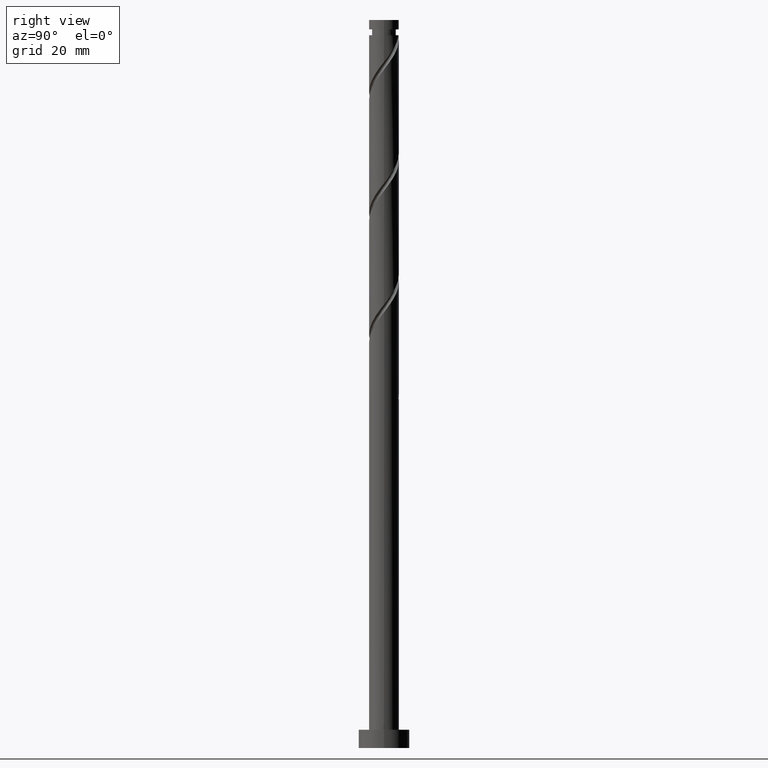
[diagram: clean part render]
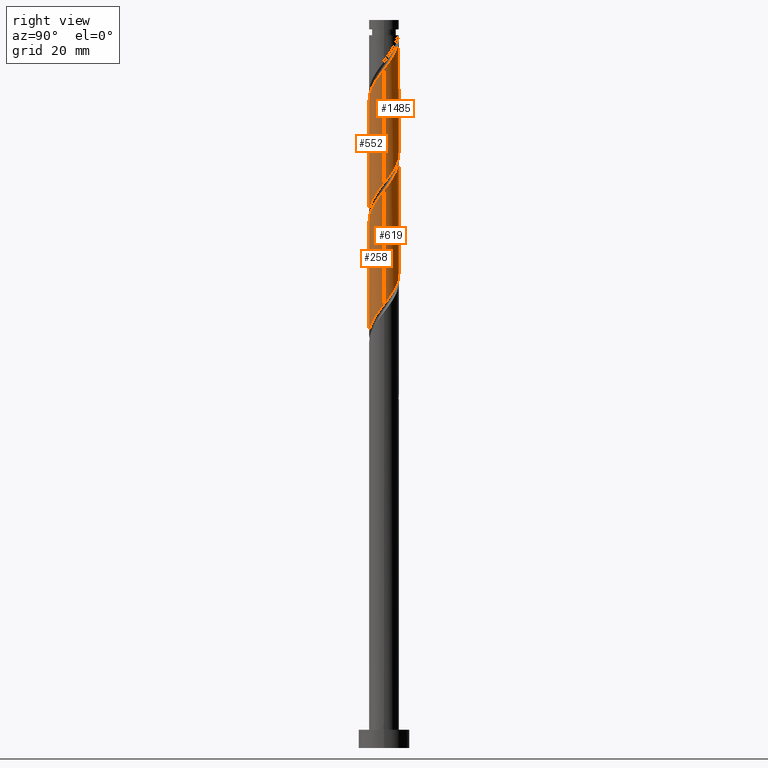
[diagram: same view with one multi-face feature highlighted, each face labeled with its STEP entity id]
A machine part, right view. The highlighted faces form ONE feature: a constant-radius fillet chain: 4 tangent blend faces with common blend radius 4.1 mm. The faces share edges in the B-rep.
Their STEP definitions:
[1] entity #258 (Cylinder):
#63 =( BOUNDED_CURVE ( )  B_SPLINE_CURVE ( 2, ( #532, #1608, #1718, #630, #398, #1441, #374, #638, #1201, #232, #101, #760, #1576, #1301, #504, #1165, #1711, #497, #1601, #391, #1466, #1030, #367, #928, #1726, #115, #1047 ),
 .UNSPECIFIED., .F., .T. ) 
 B_SPLINE_CURVE_WITH_KNOTS ( ( 3, 2, 2, 2, 2, 2, 2, 2, 2, 2, 2, 2, 2, 3 ),
 ( 0.3045317669814462946, 0.3125000000000000000, 0.3229166666666666297, 0.3333333333333333703, 0.3437500000000000000, 0.3541666666666666297, 0.3645833333333333703, 0.3750000000000000000, 0.3854166666666666297, 0.3958333333333333703, 0.4062500000000000000, 0.4166666666666666297, 0.4270833333333333703, 0.4295317669814461281 ),
 .UNSPECIFIED. ) 
 CURVE ( )  GEOMETRIC_REPRESENTATION_ITEM ( )  RATIONAL_B_SPLINE_CURVE ( ( 0.9062941362546472757, 0.9031415850403514689, 0.9090909090909271573, 0.9013135103398453030, 0.9090909090909271573, 0.9013135103398453030, 0.9090909090909271573, 0.9013135103398453030, 0.9090909090909271573, 0.9013135103398453030, 0.9090909090909271573, 0.9013135103398453030, 0.9090909090909271573, 0.9013135103398453030, 0.9090909090909271573, 0.9013135103398453030, 0.9090909090909271573, 0.9013135103398453030, 0.9090909090909271573, 0.9013135103398453030, 0.9090909090909271573, 0.9013135103398453030, 0.9090909090909271573, 0.9013135103398453030, 0.9090909090909271573, 0.9072628343904209913, 0.9062941362546474977 ) ) 
 REPRESENTATION_ITEM ( '' )  );
#68 = CARTESIAN_POINT ( 'NONE',  ( 3.071745223192158480, -2.715581205524181474, 118.0317985425582350 ) ) ;
#75 = VERTEX_POINT ( 'NONE', #1494 ) ;
#101 = CARTESIAN_POINT ( 'NONE',  ( -1.302418794475824981, -3.887634921619593342, 143.0317985425581924 ) ) ;
#113 = VERTEX_POINT ( 'NONE', #400 ) ;
#115 = CARTESIAN_POINT ( 'NONE',  ( 4.100000000000004086, -0.1260420017964737349, 152.9161793104311471 ) ) ;
#147 = ORIENTED_EDGE ( 'NONE', *, *, #340, .F. ) ;
#174 = CARTESIAN_POINT ( 'NONE',  ( 3.910586083446199179, -1.344869433733589137, 120.1151318758915352 ) ) ;
#186 = CARTESIAN_POINT ( 'NONE',  ( -2.715581205524180142, -3.071745223192158480, 109.6984652092249632 ) ) ;
#195 = CARTESIAN_POINT ( 'NONE',  ( -0.2869099631212743140, -4.125413916553799076, 113.1706874314471207 ) ) ;
#206 = CARTESIAN_POINT ( 'NONE',  ( -3.887634921619589345, -1.302418794475820540, 106.9206874314471492 ) ) ;
#220 = CARTESIAN_POINT ( 'NONE',  ( -4.100000000000004974, -2.990756888724007897E-15, 136.4126763317925679 ) ) ;
#232 = CARTESIAN_POINT ( 'NONE',  ( -1.814235641615024042, -3.716168234422086769, 142.3373540981137921 ) ) ;
#258 = ADVANCED_FACE ( 'NONE', ( #974 ), #1009, .T. ) ;
#308 = CARTESIAN_POINT ( 'NONE',  ( 0.7906019473366200367, -4.059101608817096363, 114.5595763203360065 ) ) ;
#326 = DIRECTION ( 'NONE',  ( -0.000000000000000000, -0.000000000000000000, -1.000000000000000000 ) ) ;
#335 = CARTESIAN_POINT ( 'NONE',  ( 3.669922177373502681, -1.828023854336185305, 119.4206874314471492 ) ) ;
#340 = EDGE_CURVE ( 'NONE', #75, #923, #1458, .T. ) ;
#345 = CARTESIAN_POINT ( 'NONE',  ( -4.100000000000000533, 4.919795081951022713E-15, 105.2064763088794024 ) ) ;
#347 = LINE ( 'NONE', #1572, #431 ) ;
#367 = CARTESIAN_POINT ( 'NONE',  ( 3.887634921619593342, -1.302418794475825203, 151.3651318758915352 ) ) ;
#374 = CARTESIAN_POINT ( 'NONE',  ( -3.071745223192163810, -2.715581205524180142, 140.2540207647804777 ) ) ;
#377 = AXIS2_PLACEMENT_3D ( 'NONE', #1534, #326, #1250 ) ;
#391 = CARTESIAN_POINT ( 'NONE',  ( 3.119984136109581918, -2.714232175083516552, 149.2817985425582208 ) ) ;
#398 = CARTESIAN_POINT ( 'NONE',  ( -3.669922177373510674, -1.828023854336183529, 138.8651318758915352 ) ) ;
#400 = CARTESIAN_POINT ( 'NONE',  ( 4.100000000000004974, 4.635673177522212615E-16, 153.0793429984592819 ) ) ;
#431 = VECTOR ( 'NONE', #1145, 1000.000000000000000 ) ;
#443 = CARTESIAN_POINT ( 'NONE',  ( 4.100000000000000533, 5.428223753034107144E-15, 121.8731429755461022 ) ) ;
#462 = CARTESIAN_POINT ( 'NONE',  ( -4.059101608817095475, -0.7906019473366212580, 106.2262429870026921 ) ) ;
#497 = CARTESIAN_POINT ( 'NONE',  ( 2.311178274938778809, -3.429258271300815064, 147.8929096536693919 ) ) ;
#504 = CARTESIAN_POINT ( 'NONE',  ( 0.8158896984274295328, -4.018000000000004235, 145.8095763203359638 ) ) ;
#506 = ORIENTED_EDGE ( 'NONE', *, *, #957, .F. ) ;
#532 = CARTESIAN_POINT ( 'NONE',  ( -4.100000000000004974, -2.990756888724007897E-15, 136.4126763317925679 ) ) ;
#569 = CARTESIAN_POINT ( 'NONE',  ( -4.092257762685448164, -0.2518459921076742214, 105.5317985425582492 ) ) ;
#576 = VECTOR ( 'NONE', #1563, 1000.000000000000000 ) ;
#580 = CARTESIAN_POINT ( 'NONE',  ( 2.264233908349262858, -3.418076185265833011, 116.6429096536693919 ) ) ;
#588 = CARTESIAN_POINT ( 'NONE',  ( 1.814235641615018713, -3.716168234422083216, 115.9484652092248780 ) ) ;
#597 = CARTESIAN_POINT ( 'NONE',  ( -3.119984136109579254, -2.714232175083509446, 109.0040207647804920 ) ) ;
#630 = CARTESIAN_POINT ( 'NONE',  ( -3.910586083446208061, -1.344869433733586916, 138.1706874314471349 ) ) ;
#638 = CARTESIAN_POINT ( 'NONE',  ( -2.714232175083516552, -3.119984136109581918, 140.9484652092249064 ) ) ;
#730 = CARTESIAN_POINT ( 'NONE',  ( -1.344869433733588027, -3.910586083446200956, 111.7817985425582350 ) ) ;
#737 = CARTESIAN_POINT ( 'NONE',  ( -4.100000000000000533, -0.1260420017964576922, 105.3696399969075514 ) ) ;
#760 = CARTESIAN_POINT ( 'NONE',  ( -0.7906019473366246997, -4.059101608817101692, 143.7262429870026779 ) ) ;
#923 = VERTEX_POINT ( 'NONE', #1057 ) ;
#928 = CARTESIAN_POINT ( 'NONE',  ( 4.059101608817101692, -0.7906019473366266981, 152.0595763203360207 ) ) ;
#957 = EDGE_CURVE ( 'NONE', #1226, #113, #63, .T. ) ;
#974 = FACE_OUTER_BOUND ( 'NONE', #1182, .T. ) ;
#991 = CARTESIAN_POINT ( 'NONE',  ( 2.714232175083508558, -3.119984136109578809, 117.3373540981137779 ) ) ;
#1009 = CYLINDRICAL_SURFACE ( 'NONE', #377, 4.099999999999999645 ) ;
#1020 = CARTESIAN_POINT ( 'NONE',  ( 4.099999999999999645, 5.021051876504147385E-16, 200.0000000000000000 ) ) ;
#1030 = CARTESIAN_POINT ( 'NONE',  ( 3.716168234422086769, -1.814235641615024042, 150.6706874314471634 ) ) ;
#1047 = CARTESIAN_POINT ( 'NONE',  ( 4.100000000000004974, 4.635673177522212615E-16, 153.0793429984592819 ) ) ;
#1057 = CARTESIAN_POINT ( 'NONE',  ( -4.100000000000000533, 4.919795081951022713E-15, 105.2064763088794024 ) ) ;
#1115 = CARTESIAN_POINT ( 'NONE',  ( 0.2518459921076728891, -4.092257762685448164, 113.8651318758916062 ) ) ;
#1131 = CARTESIAN_POINT ( 'NONE',  ( 1.302418794475820096, -3.887634921619589345, 115.2540207647804920 ) ) ;
#1145 = DIRECTION ( 'NONE',  ( -0.000000000000000000, -0.000000000000000000, -1.000000000000000000 ) ) ;
#1165 = CARTESIAN_POINT ( 'NONE',  ( 1.344869433733586916, -3.910586083446208061, 146.5040207647804777 ) ) ;
#1182 = EDGE_LOOP ( 'NONE', ( #1194, #506, #1729, #147 ) ) ;
#1194 = ORIENTED_EDGE ( 'NONE', *, *, #1375, .F. ) ;
#1201 = CARTESIAN_POINT ( 'NONE',  ( -2.264233908349268631, -3.418076185265834788, 141.6429096536692782 ) ) ;
#1226 = VERTEX_POINT ( 'NONE', #220 ) ;
#1243 = EDGE_CURVE ( 'NONE', #1226, #923, #347, .T. ) ;
#1250 = DIRECTION ( 'NONE',  ( -1.000000000000000000, 0.000000000000000000, 0.000000000000000000 ) ) ;
#1277 = CARTESIAN_POINT ( 'NONE',  ( -2.311178274938777477, -3.429258271300808403, 110.3929096536693635 ) ) ;
#1290 = LINE ( 'NONE', #1020, #576 ) ;
#1301 = CARTESIAN_POINT ( 'NONE',  ( 0.2869099631212713164, -4.125413916553803517, 145.1151318758915920 ) ) ;
#1375 = EDGE_CURVE ( 'NONE', #113, #75, #1290, .T. ) ;
#1396 = CARTESIAN_POINT ( 'NONE',  ( 3.429258271300806626, -2.311178274938779698, 118.7262429870026494 ) ) ;
#1405 = CARTESIAN_POINT ( 'NONE',  ( 4.018000000000000682, -0.8158896984274305320, 120.8095763203360633 ) ) ;
#1441 = CARTESIAN_POINT ( 'NONE',  ( -3.429258271300815064, -2.311178274938779698, 139.5595763203359922 ) ) ;
#1458 =( BOUNDED_CURVE ( )  B_SPLINE_CURVE ( 2, ( #443, #1544, #1405, #174, #335, #1396, #68, #991, #580, #588, #1131, #308, #1115, #195, #1667, #730, #1553, #1277, #186, #597, #1676, #1526, #206, #462, #569, #737, #345 ),
 .UNSPECIFIED., .F., .T. ) 
 B_SPLINE_CURVE_WITH_KNOTS ( ( 3, 2, 2, 2, 2, 2, 2, 2, 2, 2, 2, 2, 2, 3 ),
 ( 0.8045317669814462391, 0.8125000000000000000, 0.8229166666666666297, 0.8333333333333333703, 0.8437500000000000000, 0.8541666666666666297, 0.8645833333333333703, 0.8750000000000000000, 0.8854166666666666297, 0.8958333333333333703, 0.9062500000000000000, 0.9166666666666666297, 0.9270833333333333703, 0.9295317669814463502 ),
 .UNSPECIFIED. ) 
 CURVE ( )  GEOMETRIC_REPRESENTATION_ITEM ( )  RATIONAL_B_SPLINE_CURVE ( ( 0.9062941362546417245, 0.9031415850403461398, 0.9090909090909213841, 0.9013135103398399739, 0.9090909090909213841, 0.9013135103398399739, 0.9090909090909213841, 0.9013135103398399739, 0.9090909090909213841, 0.9013135103398399739, 0.9090909090909213841, 0.9013135103398399739, 0.9090909090909213841, 0.9013135103398399739, 0.9090909090909213841, 0.9013135103398399739, 0.9090909090909213841, 0.9013135103398399739, 0.9090909090909213841, 0.9013135103398399739, 0.9090909090909213841, 0.9013135103398399739, 0.9090909090909213841, 0.9013135103398399739, 0.9090909090909213841, 0.9072628343904152182, 0.9062941362546417245 ) ) 
 REPRESENTATION_ITEM ( '' )  );
#1466 = CARTESIAN_POINT ( 'NONE',  ( 3.418076185265832567, -2.264233908349269964, 149.9762429870026494 ) ) ;
#1494 = CARTESIAN_POINT ( 'NONE',  ( 4.100000000000000533, 5.428223753034107144E-15, 121.8731429755461022 ) ) ;
#1526 = CARTESIAN_POINT ( 'NONE',  ( -3.716168234422083216, -1.814235641615018713, 107.6151318758915778 ) ) ;
#1534 = CARTESIAN_POINT ( 'NONE',  ( 0.000000000000000000, 0.000000000000000000, 200.0000000000000000 ) ) ;
#1544 = CARTESIAN_POINT ( 'NONE',  ( 4.100000000000000533, -0.4120655042562753057, 121.3397166063568164 ) ) ;
#1553 = CARTESIAN_POINT ( 'NONE',  ( -1.828023854336183307, -3.669922177373504901, 111.0873540981138063 ) ) ;
#1563 = DIRECTION ( 'NONE',  ( -0.000000000000000000, -0.000000000000000000, -1.000000000000000000 ) ) ;
#1572 = CARTESIAN_POINT ( 'NONE',  ( -4.099999999999999645, 0.000000000000000000, 200.0000000000000000 ) ) ;
#1576 = CARTESIAN_POINT ( 'NONE',  ( -0.2518459921076766084, -4.092257762685451716, 144.4206874314471065 ) ) ;
#1601 = CARTESIAN_POINT ( 'NONE',  ( 2.715581205524179698, -3.071745223192164698, 148.5873540981137353 ) ) ;
#1608 = CARTESIAN_POINT ( 'NONE',  ( -4.100000000000005862, -0.4120655042562764714, 136.9461027009818679 ) ) ;
#1667 = CARTESIAN_POINT ( 'NONE',  ( -0.8158896984274304209, -4.018000000000000682, 112.4762429870027063 ) ) ;
#1676 = CARTESIAN_POINT ( 'NONE',  ( -3.418076185265831679, -2.264233908349265079, 108.3095763203360207 ) ) ;
#1711 = CARTESIAN_POINT ( 'NONE',  ( 1.828023854336181975, -3.669922177373511119, 147.1984652092249064 ) ) ;
#1718 = CARTESIAN_POINT ( 'NONE',  ( -4.018000000000004235, -0.8158896984274297548, 137.4762429870026779 ) ) ;
#1726 = CARTESIAN_POINT ( 'NONE',  ( 4.092257762685450828, -0.2518459921076786068, 152.7540207647804777 ) ) ;
#1729 = ORIENTED_EDGE ( 'NONE', *, *, #1243, .T. ) ;
[2] entity #619 (Cylinder):
#5 = CARTESIAN_POINT ( 'NONE',  ( -4.018000000000000682, 0.8158896984274299768, 137.4762429870027063 ) ) ;
#11 = CARTESIAN_POINT ( 'NONE',  ( -4.100000000000004086, 0.1260420017964669070, 169.5828459770977759 ) ) ;
#14 = CARTESIAN_POINT ( 'NONE',  ( 1.828023854336185750, 3.669922177373502681, 127.7540207647805062 ) ) ;
#19 = CARTESIAN_POINT ( 'NONE',  ( 2.264233908349269075, 3.418076185265834788, 158.3095763203359922 ) ) ;
#23 = CARTESIAN_POINT ( 'NONE',  ( -4.100000000000002309, 0.4120655042562692549, 138.0063832730234878 ) ) ;
#25 = EDGE_CURVE ( 'NONE', #553, #75, #402, .T. ) ;
#75 = VERTEX_POINT ( 'NONE', #1494 ) ;
#86 = FACE_OUTER_BOUND ( 'NONE', #485, .T. ) ;
#113 = VERTEX_POINT ( 'NONE', #400 ) ;
#117 = CARTESIAN_POINT ( 'NONE',  ( -4.092257762685451716, 0.2518459921076763863, 169.4206874314471065 ) ) ;
#119 = CARTESIAN_POINT ( 'NONE',  ( 1.344869433733590247, 3.910586083446199179, 128.4484652092249348 ) ) ;
#130 = CARTESIAN_POINT ( 'NONE',  ( -3.669922177373504901, 1.828023854336183307, 136.0873540981137921 ) ) ;
#139 = CARTESIAN_POINT ( 'NONE',  ( 2.715581205524181474, 3.071745223192158036, 126.3651318758916062 ) ) ;
#148 = CARTESIAN_POINT ( 'NONE',  ( 2.311178274938780142, 3.429258271300806626, 127.0595763203359922 ) ) ;
#229 = DIRECTION ( 'NONE',  ( -0.000000000000000000, -0.000000000000000000, -1.000000000000000000 ) ) ;
#287 = CARTESIAN_POINT ( 'NONE',  ( -1.828023854336183751, 3.669922177373510674, 163.8651318758915352 ) ) ;
#289 = CARTESIAN_POINT ( 'NONE',  ( 4.100000000000000533, 5.428223753034107144E-15, 121.8731429755461022 ) ) ;
#399 = CARTESIAN_POINT ( 'NONE',  ( 3.910586083446208061, 1.344869433733586472, 154.8373540981138206 ) ) ;
#400 = CARTESIAN_POINT ( 'NONE',  ( 4.100000000000004974, 4.635673177522212615E-16, 153.0793429984592819 ) ) ;
#402 =( BOUNDED_CURVE ( )  B_SPLINE_CURVE ( 2, ( #1351, #23, #5, #933, #130, #685, #1195, #1501, #1234, #1474, #1089, #1748, #949, #1081, #1096, #119, #14, #148, #139, #424, #1225, #409, #658, #819, #1630, #668, #289 ),
 .UNSPECIFIED., .F., .T. ) 
 B_SPLINE_CURVE_WITH_KNOTS ( ( 3, 2, 2, 2, 2, 2, 2, 2, 2, 2, 2, 2, 2, 3 ),
 ( 0.6795317669814461281, 0.6875000000000000000, 0.6979166666666666297, 0.7083333333333333703, 0.7187500000000000000, 0.7291666666666666297, 0.7395833333333333703, 0.7500000000000000000, 0.7604166666666666297, 0.7708333333333333703, 0.7812500000000000000, 0.7916666666666666297, 0.8020833333333333703, 0.8045317669814462391 ),
 .UNSPECIFIED. ) 
 CURVE ( )  GEOMETRIC_REPRESENTATION_ITEM ( )  RATIONAL_B_SPLINE_CURVE ( ( 0.9062941362546417245, 0.9031415850403459178, 0.9090909090909213841, 0.9013135103398399739, 0.9090909090909213841, 0.9013135103398399739, 0.9090909090909213841, 0.9013135103398399739, 0.9090909090909213841, 0.9013135103398399739, 0.9090909090909213841, 0.9013135103398399739, 0.9090909090909213841, 0.9013135103398399739, 0.9090909090909213841, 0.9013135103398399739, 0.9090909090909213841, 0.9013135103398399739, 0.9090909090909213841, 0.9013135103398399739, 0.9090909090909213841, 0.9013135103398399739, 0.9090909090909213841, 0.9013135103398399739, 0.9090909090909213841, 0.9072628343904152182, 0.9062941362546417245 ) ) 
 REPRESENTATION_ITEM ( '' )  );
#409 = CARTESIAN_POINT ( 'NONE',  ( 3.716168234422084105, 1.814235641615016714, 124.2817985425582208 ) ) ;
#424 = CARTESIAN_POINT ( 'NONE',  ( 3.119984136109579698, 2.714232175083508558, 125.6706874314471349 ) ) ;
#480 =( BOUNDED_CURVE ( )  B_SPLINE_CURVE ( 2, ( #1231, #807, #524, #399, #549, #1602, #788, #1483, #19, #1327, #1086, #683, #1358, #1746, #947, #1193, #287, #939, #557, #1499, #1212, #1492, #533, #953, #117, #11, #930 ),
 .UNSPECIFIED., .F., .T. ) 
 B_SPLINE_CURVE_WITH_KNOTS ( ( 3, 2, 2, 2, 2, 2, 2, 2, 2, 2, 2, 2, 2, 3 ),
 ( 0.4295317669814461281, 0.4375000000000000000, 0.4479166666666666297, 0.4583333333333333703, 0.4687500000000000000, 0.4791666666666666297, 0.4895833333333333703, 0.5000000000000000000, 0.5104166666666667407, 0.5208333333333332593, 0.5312500000000000000, 0.5416666666666667407, 0.5520833333333332593, 0.5545317669814461281 ),
 .UNSPECIFIED. ) 
 CURVE ( )  GEOMETRIC_REPRESENTATION_ITEM ( )  RATIONAL_B_SPLINE_CURVE ( ( 0.9062941362546474977, 0.9031415850403514689, 0.9090909090909271573, 0.9013135103398453030, 0.9090909090909271573, 0.9013135103398453030, 0.9090909090909271573, 0.9013135103398453030, 0.9090909090909271573, 0.9013135103398453030, 0.9090909090909271573, 0.9013135103398453030, 0.9090909090909271573, 0.9013135103398453030, 0.9090909090909271573, 0.9013135103398453030, 0.9090909090909271573, 0.9013135103398453030, 0.9090909090909271573, 0.9013135103398453030, 0.9090909090909271573, 0.9013135103398453030, 0.9090909090909271573, 0.9013135103398453030, 0.9090909090909271573, 0.9072628343904209913, 0.9062941362546474977 ) ) 
 REPRESENTATION_ITEM ( '' )  );
#484 = CARTESIAN_POINT ( 'NONE',  ( -4.099999999999999645, 0.000000000000000000, 200.0000000000000000 ) ) ;
#485 = EDGE_LOOP ( 'NONE', ( #1604, #1609, #1241, #1104 ) ) ;
#523 = CARTESIAN_POINT ( 'NONE',  ( -4.100000000000004974, -1.615008719910963854E-15, 169.7460096651259391 ) ) ;
#524 = CARTESIAN_POINT ( 'NONE',  ( 4.018000000000004235, 0.8158896984274293107, 154.1429096536692782 ) ) ;
#533 = CARTESIAN_POINT ( 'NONE',  ( -3.887634921619593342, 1.302418794475823649, 168.0317985425582208 ) ) ;
#549 = CARTESIAN_POINT ( 'NONE',  ( 3.669922177373511119, 1.828023854336181975, 155.5317985425582492 ) ) ;
#553 = VERTEX_POINT ( 'NONE', #897 ) ;
#557 = CARTESIAN_POINT ( 'NONE',  ( -2.715581205524180586, 3.071745223192163810, 165.2540207647804209 ) ) ;
#576 = VECTOR ( 'NONE', #1563, 1000.000000000000000 ) ;
#619 = ADVANCED_FACE ( 'NONE', ( #86 ), #624, .T. ) ;
#624 = CYLINDRICAL_SURFACE ( 'NONE', #965, 4.099999999999999645 ) ;
#658 = CARTESIAN_POINT ( 'NONE',  ( 3.887634921619590234, 1.302418794475818098, 123.5873540981138348 ) ) ;
#668 = CARTESIAN_POINT ( 'NONE',  ( 4.099999999999999645, 0.1260420017964621331, 122.0363066635742371 ) ) ;
#683 = CARTESIAN_POINT ( 'NONE',  ( 0.7906019473366268091, 4.059101608817101692, 160.3929096536693919 ) ) ;
#685 = CARTESIAN_POINT ( 'NONE',  ( -3.429258271300808403, 2.311178274938777477, 135.3929096536693351 ) ) ;
#700 = EDGE_CURVE ( 'NONE', #113, #938, #480, .T. ) ;
#788 = CARTESIAN_POINT ( 'NONE',  ( 3.071745223192165586, 2.715581205524178365, 156.9206874314471065 ) ) ;
#807 = CARTESIAN_POINT ( 'NONE',  ( 4.100000000000006750, 0.4120655042562653692, 153.6127693676484967 ) ) ;
#819 = CARTESIAN_POINT ( 'NONE',  ( 4.059101608817096363, 0.7906019473366198147, 122.8929096536693351 ) ) ;
#897 = CARTESIAN_POINT ( 'NONE',  ( -4.100000000000000533, 4.919795081951022713E-15, 138.5398096422127310 ) ) ;
#930 = CARTESIAN_POINT ( 'NONE',  ( -4.100000000000004974, -1.615008719910963854E-15, 169.7460096651259391 ) ) ;
#933 = CARTESIAN_POINT ( 'NONE',  ( -3.910586083446200956, 1.344869433733586694, 136.7817985425581924 ) ) ;
#938 = VERTEX_POINT ( 'NONE', #523 ) ;
#939 = CARTESIAN_POINT ( 'NONE',  ( -2.311178274938780586, 3.429258271300814620, 164.5595763203360491 ) ) ;
#947 = CARTESIAN_POINT ( 'NONE',  ( -0.8158896984274289776, 4.018000000000004235, 162.4762429870026779 ) ) ;
#949 = CARTESIAN_POINT ( 'NONE',  ( -0.2518459921076746100, 4.092257762685448164, 130.5317985425582776 ) ) ;
#953 = CARTESIAN_POINT ( 'NONE',  ( -4.059101608817101692, 0.7906019473366244776, 168.7262429870026779 ) ) ;
#965 = AXIS2_PLACEMENT_3D ( 'NONE', #1585, #1173, #1720 ) ;
#1020 = CARTESIAN_POINT ( 'NONE',  ( 4.099999999999999645, 5.021051876504147385E-16, 200.0000000000000000 ) ) ;
#1081 = CARTESIAN_POINT ( 'NONE',  ( 0.2869099631212730928, 4.125413916553798188, 129.8373540981138206 ) ) ;
#1086 = CARTESIAN_POINT ( 'NONE',  ( 1.302418794475825425, 3.887634921619592898, 159.6984652092248780 ) ) ;
#1089 = CARTESIAN_POINT ( 'NONE',  ( -1.302418794475821207, 3.887634921619589345, 131.9206874314471634 ) ) ;
#1096 = CARTESIAN_POINT ( 'NONE',  ( 0.8158896984274306430, 4.018000000000000682, 129.1429096536693635 ) ) ;
#1104 = ORIENTED_EDGE ( 'NONE', *, *, #1297, .F. ) ;
#1173 = DIRECTION ( 'NONE',  ( -0.000000000000000000, -0.000000000000000000, -1.000000000000000000 ) ) ;
#1177 = LINE ( 'NONE', #484, #1594 ) ;
#1193 = CARTESIAN_POINT ( 'NONE',  ( -1.344869433733587583, 3.910586083446207173, 163.1706874314471634 ) ) ;
#1195 = CARTESIAN_POINT ( 'NONE',  ( -3.071745223192159369, 2.715581205524179698, 134.6984652092249064 ) ) ;
#1212 = CARTESIAN_POINT ( 'NONE',  ( -3.418076185265835232, 2.264233908349268631, 166.6429096536693066 ) ) ;
#1225 = CARTESIAN_POINT ( 'NONE',  ( 3.418076185265832123, 2.264233908349264190, 124.9762429870027205 ) ) ;
#1231 = CARTESIAN_POINT ( 'NONE',  ( 4.100000000000004974, 4.635673177522212615E-16, 153.0793429984592819 ) ) ;
#1234 = CARTESIAN_POINT ( 'NONE',  ( -2.264233908349265523, 3.418076185265831679, 133.3095763203360207 ) ) ;
#1241 = ORIENTED_EDGE ( 'NONE', *, *, #25, .F. ) ;
#1290 = LINE ( 'NONE', #1020, #576 ) ;
#1297 = EDGE_CURVE ( 'NONE', #938, #553, #1177, .T. ) ;
#1327 = CARTESIAN_POINT ( 'NONE',  ( 1.814235641615024708, 3.716168234422086769, 159.0040207647804493 ) ) ;
#1351 = CARTESIAN_POINT ( 'NONE',  ( -4.100000000000000533, 4.919795081951022713E-15, 138.5398096422127310 ) ) ;
#1358 = CARTESIAN_POINT ( 'NONE',  ( 0.2518459921076788288, 4.092257762685450828, 161.0873540981137353 ) ) ;
#1375 = EDGE_CURVE ( 'NONE', #113, #75, #1290, .T. ) ;
#1474 = CARTESIAN_POINT ( 'NONE',  ( -1.814235641615019823, 3.716168234422081884, 132.6151318758915920 ) ) ;
#1483 = CARTESIAN_POINT ( 'NONE',  ( 2.714232175083517440, 3.119984136109580142, 157.6151318758916204 ) ) ;
#1492 = CARTESIAN_POINT ( 'NONE',  ( -3.716168234422086769, 1.814235641615022931, 167.3373540981138206 ) ) ;
#1494 = CARTESIAN_POINT ( 'NONE',  ( 4.100000000000000533, 5.428223753034107144E-15, 121.8731429755461022 ) ) ;
#1499 = CARTESIAN_POINT ( 'NONE',  ( -3.119984136109582806, 2.714232175083515219, 165.9484652092249064 ) ) ;
#1501 = CARTESIAN_POINT ( 'NONE',  ( -2.714232175083509890, 3.119984136109578809, 134.0040207647804493 ) ) ;
#1563 = DIRECTION ( 'NONE',  ( -0.000000000000000000, -0.000000000000000000, -1.000000000000000000 ) ) ;
#1585 = CARTESIAN_POINT ( 'NONE',  ( 0.000000000000000000, 0.000000000000000000, 200.0000000000000000 ) ) ;
#1594 = VECTOR ( 'NONE', #229, 1000.000000000000000 ) ;
#1602 = CARTESIAN_POINT ( 'NONE',  ( 3.429258271300815064, 2.311178274938778365, 156.2262429870027063 ) ) ;
#1604 = ORIENTED_EDGE ( 'NONE', *, *, #700, .F. ) ;
#1609 = ORIENTED_EDGE ( 'NONE', *, *, #1375, .T. ) ;
#1630 = CARTESIAN_POINT ( 'NONE',  ( 4.092257762685448164, 0.2518459921076726671, 122.1984652092249348 ) ) ;
#1720 = DIRECTION ( 'NONE',  ( -1.000000000000000000, 0.000000000000000000, 0.000000000000000000 ) ) ;
#1746 = CARTESIAN_POINT ( 'NONE',  ( -0.2869099631212688184, 4.125413916553803517, 161.7817985425582492 ) ) ;
#1748 = CARTESIAN_POINT ( 'NONE',  ( -0.7906019473366224792, 4.059101608817095475, 131.2262429870026779 ) ) ;
[3] entity #552 (Cylinder):
#7 = CARTESIAN_POINT ( 'NONE',  ( -3.119984136109579254, -2.714232175083509446, 142.3373540981137637 ) ) ;
#31 = CARTESIAN_POINT ( 'NONE',  ( -2.264233908349268631, -3.418076185265834788, 174.9762429870026779 ) ) ;
#50 = CARTESIAN_POINT ( 'NONE',  ( 1.344869433733586916, -3.910586083446208061, 179.8373540981137921 ) ) ;
#116 = VERTEX_POINT ( 'NONE', #267 ) ;
#133 = CARTESIAN_POINT ( 'NONE',  ( 3.910586083446199179, -1.344869433733589137, 153.4484652092248780 ) ) ;
#141 = CARTESIAN_POINT ( 'NONE',  ( 3.669922177373502681, -1.828023854336185305, 152.7540207647804493 ) ) ;
#150 = CARTESIAN_POINT ( 'NONE',  ( -4.092257762685448164, -0.2518459921076742214, 138.8651318758916204 ) ) ;
#166 = CARTESIAN_POINT ( 'NONE',  ( -4.018000000000004235, -0.8158896984274297548, 170.8095763203359922 ) ) ;
#175 = VERTEX_POINT ( 'NONE', #1508 ) ;
#191 = ORIENTED_EDGE ( 'NONE', *, *, #1297, .T. ) ;
#225 = CYLINDRICAL_SURFACE ( 'NONE', #1049, 4.099999999999999645 ) ;
#229 = DIRECTION ( 'NONE',  ( -0.000000000000000000, -0.000000000000000000, -1.000000000000000000 ) ) ;
#253 = CARTESIAN_POINT ( 'NONE',  ( 3.429258271300806626, -2.311178274938779698, 152.0595763203360207 ) ) ;
#267 = CARTESIAN_POINT ( 'NONE',  ( 4.100000000000004974, -8.822732821735821147E-16, 186.4126763317926248 ) ) ;
#283 = CARTESIAN_POINT ( 'NONE',  ( 2.264233908349262858, -3.418076185265833011, 149.9762429870027063 ) ) ;
#362 = CARTESIAN_POINT ( 'NONE',  ( 0.000000000000000000, 0.000000000000000000, 200.0000000000000000 ) ) ;
#378 = CARTESIAN_POINT ( 'NONE',  ( -1.344869433733588027, -3.910586083446200956, 145.1151318758915352 ) ) ;
#387 = CARTESIAN_POINT ( 'NONE',  ( -4.100000000000000533, 4.919795081951022713E-15, 138.5398096422127310 ) ) ;
#389 = EDGE_CURVE ( 'NONE', #938, #116, #1019, .T. ) ;
#395 = CARTESIAN_POINT ( 'NONE',  ( 4.100000000000000533, 5.428223753034107144E-15, 155.2064763088794450 ) ) ;
#403 = CARTESIAN_POINT ( 'NONE',  ( -4.059101608817095475, -0.7906019473366212580, 139.5595763203359922 ) ) ;
#435 = CARTESIAN_POINT ( 'NONE',  ( -0.7906019473366246997, -4.059101608817101692, 177.0595763203360491 ) ) ;
#461 = VECTOR ( 'NONE', #975, 1000.000000000000000 ) ;
#481 = CARTESIAN_POINT ( 'NONE',  ( 4.059101608817101692, -0.7906019473366266981, 185.3929096536694203 ) ) ;
#484 = CARTESIAN_POINT ( 'NONE',  ( -4.099999999999999645, 0.000000000000000000, 200.0000000000000000 ) ) ;
#514 = CARTESIAN_POINT ( 'NONE',  ( 2.311178274938778809, -3.429258271300815064, 181.2262429870027063 ) ) ;
#523 = CARTESIAN_POINT ( 'NONE',  ( -4.100000000000004974, -1.615008719910963854E-15, 169.7460096651259391 ) ) ;
#552 = ADVANCED_FACE ( 'NONE', ( #1434 ), #225, .T. ) ;
#553 = VERTEX_POINT ( 'NONE', #897 ) ;
#570 = LINE ( 'NONE', #1105, #461 ) ;
#631 = DIRECTION ( 'NONE',  ( -1.000000000000000000, 0.000000000000000000, 0.000000000000000000 ) ) ;
#680 = CARTESIAN_POINT ( 'NONE',  ( 1.814235641615018713, -3.716168234422083216, 149.2817985425582208 ) ) ;
#701 = CARTESIAN_POINT ( 'NONE',  ( -3.910586083446208061, -1.344869433733586916, 171.5040207647805062 ) ) ;
#711 = CARTESIAN_POINT ( 'NONE',  ( 0.2869099631212713164, -4.125413916553803517, 178.4484652092249064 ) ) ;
#719 = CARTESIAN_POINT ( 'NONE',  ( -3.669922177373510674, -1.828023854336183529, 172.1984652092248780 ) ) ;
#761 = CARTESIAN_POINT ( 'NONE',  ( 3.887634921619593342, -1.302418794475825203, 184.6984652092248780 ) ) ;
#769 = DIRECTION ( 'NONE',  ( -0.000000000000000000, -0.000000000000000000, -1.000000000000000000 ) ) ;
#779 = CARTESIAN_POINT ( 'NONE',  ( 3.716168234422086769, -1.814235641615024042, 184.0040207647804777 ) ) ;
#785 = EDGE_LOOP ( 'NONE', ( #1612, #1073, #191, #1484 ) ) ;
#803 = CARTESIAN_POINT ( 'NONE',  ( 1.302418794475820096, -3.887634921619589345, 148.5873540981138206 ) ) ;
#813 = CARTESIAN_POINT ( 'NONE',  ( -3.418076185265831679, -2.264233908349265079, 141.6429096536693351 ) ) ;
#842 = CARTESIAN_POINT ( 'NONE',  ( -3.429258271300815064, -2.311178274938779698, 172.8929096536693919 ) ) ;
#888 = CARTESIAN_POINT ( 'NONE',  ( 4.092257762685450828, -0.2518459921076786068, 186.0873540981137921 ) ) ;
#897 = CARTESIAN_POINT ( 'NONE',  ( -4.100000000000000533, 4.919795081951022713E-15, 138.5398096422127310 ) ) ;
#917 = CARTESIAN_POINT ( 'NONE',  ( -2.715581205524180142, -3.071745223192158480, 143.0317985425582776 ) ) ;
#925 = CARTESIAN_POINT ( 'NONE',  ( 3.071745223192158480, -2.715581205524181474, 151.3651318758916204 ) ) ;
#938 = VERTEX_POINT ( 'NONE', #523 ) ;
#975 = DIRECTION ( 'NONE',  ( -0.000000000000000000, -0.000000000000000000, -1.000000000000000000 ) ) ;
#1019 =( BOUNDED_CURVE ( )  B_SPLINE_CURVE ( 2, ( #1141, #1377, #166, #701, #719, #842, #1261, #1240, #31, #1103, #1647, #435, #1387, #711, #1657, #50, #1123, #514, #1311, #1696, #1561, #779, #761, #481, #888, #1450, #1318 ),
 .UNSPECIFIED., .F., .T. ) 
 B_SPLINE_CURVE_WITH_KNOTS ( ( 3, 2, 2, 2, 2, 2, 2, 2, 2, 2, 2, 2, 2, 3 ),
 ( 0.5545317669814461281, 0.5625000000000000000, 0.5729166666666667407, 0.5833333333333332593, 0.5937500000000000000, 0.6041666666666667407, 0.6145833333333332593, 0.6250000000000000000, 0.6354166666666667407, 0.6458333333333332593, 0.6562500000000000000, 0.6666666666666667407, 0.6770833333333332593, 0.6795317669814463502 ),
 .UNSPECIFIED. ) 
 CURVE ( )  GEOMETRIC_REPRESENTATION_ITEM ( )  RATIONAL_B_SPLINE_CURVE ( ( 0.9062941362546474977, 0.9031415850403514689, 0.9090909090909271573, 0.9013135103398453030, 0.9090909090909271573, 0.9013135103398453030, 0.9090909090909271573, 0.9013135103398453030, 0.9090909090909271573, 0.9013135103398453030, 0.9090909090909271573, 0.9013135103398453030, 0.9090909090909271573, 0.9013135103398453030, 0.9090909090909271573, 0.9013135103398453030, 0.9090909090909271573, 0.9013135103398453030, 0.9090909090909271573, 0.9013135103398453030, 0.9090909090909271573, 0.9013135103398453030, 0.9090909090909271573, 0.9013135103398453030, 0.9090909090909271573, 0.9072628343904207693, 0.9062941362546472757 ) ) 
 REPRESENTATION_ITEM ( '' )  );
#1043 = CARTESIAN_POINT ( 'NONE',  ( 4.018000000000000682, -0.8158896984274305320, 154.1429096536693351 ) ) ;
#1049 = AXIS2_PLACEMENT_3D ( 'NONE', #362, #769, #631 ) ;
#1053 = CARTESIAN_POINT ( 'NONE',  ( -0.8158896984274304209, -4.018000000000000682, 145.8095763203360207 ) ) ;
#1073 = ORIENTED_EDGE ( 'NONE', *, *, #389, .F. ) ;
#1075 = CARTESIAN_POINT ( 'NONE',  ( 0.2518459921076728891, -4.092257762685448164, 147.1984652092249064 ) ) ;
#1103 = CARTESIAN_POINT ( 'NONE',  ( -1.814235641615024042, -3.716168234422086769, 175.6706874314471065 ) ) ;
#1105 = CARTESIAN_POINT ( 'NONE',  ( 4.099999999999999645, 5.021051876504147385E-16, 200.0000000000000000 ) ) ;
#1123 = CARTESIAN_POINT ( 'NONE',  ( 1.828023854336181975, -3.669922177373511119, 180.5317985425582492 ) ) ;
#1141 = CARTESIAN_POINT ( 'NONE',  ( -4.100000000000004974, -1.615008719910963854E-15, 169.7460096651259391 ) ) ;
#1177 = LINE ( 'NONE', #484, #1594 ) ;
#1185 = CARTESIAN_POINT ( 'NONE',  ( 0.7906019473366200367, -4.059101608817096363, 147.8929096536693066 ) ) ;
#1217 = CARTESIAN_POINT ( 'NONE',  ( -0.2869099631212743140, -4.125413916553799076, 146.5040207647804493 ) ) ;
#1240 = CARTESIAN_POINT ( 'NONE',  ( -2.714232175083516552, -3.119984136109581918, 174.2817985425583061 ) ) ;
#1261 = CARTESIAN_POINT ( 'NONE',  ( -3.071745223192163810, -2.715581205524180142, 173.5873540981137921 ) ) ;
#1297 = EDGE_CURVE ( 'NONE', #938, #553, #1177, .T. ) ;
#1311 = CARTESIAN_POINT ( 'NONE',  ( 2.715581205524179698, -3.071745223192164698, 181.9206874314470781 ) ) ;
#1318 = CARTESIAN_POINT ( 'NONE',  ( 4.100000000000004974, -8.822732821735821147E-16, 186.4126763317926248 ) ) ;
#1363 = CARTESIAN_POINT ( 'NONE',  ( -2.311178274938777477, -3.429258271300808403, 143.7262429870026494 ) ) ;
#1377 = CARTESIAN_POINT ( 'NONE',  ( -4.100000000000006750, -0.4120655042562723080, 170.2794360343152107 ) ) ;
#1387 = CARTESIAN_POINT ( 'NONE',  ( -0.2518459921076766084, -4.092257762685451716, 177.7540207647804493 ) ) ;
#1389 =( BOUNDED_CURVE ( )  B_SPLINE_CURVE ( 2, ( #395, #1750, #1043, #133, #141, #253, #925, #1590, #283, #680, #803, #1185, #1075, #1217, #1053, #378, #1615, #1363, #917, #7, #813, #1495, #1723, #403, #150, #1598, #387 ),
 .UNSPECIFIED., .F., .T. ) 
 B_SPLINE_CURVE_WITH_KNOTS ( ( 3, 2, 2, 2, 2, 2, 2, 2, 2, 2, 2, 2, 2, 3 ),
 ( 0.5545317669814461281, 0.5625000000000000000, 0.5729166666666666297, 0.5833333333333333703, 0.5937500000000000000, 0.6041666666666666297, 0.6145833333333333703, 0.6250000000000000000, 0.6354166666666666297, 0.6458333333333333703, 0.6562500000000000000, 0.6666666666666666297, 0.6770833333333333703, 0.6795317669814461281 ),
 .UNSPECIFIED. ) 
 CURVE ( )  GEOMETRIC_REPRESENTATION_ITEM ( )  RATIONAL_B_SPLINE_CURVE ( ( 0.9062941362546417245, 0.9031415850403459178, 0.9090909090909213841, 0.9013135103398399739, 0.9090909090909213841, 0.9013135103398399739, 0.9090909090909213841, 0.9013135103398399739, 0.9090909090909213841, 0.9013135103398399739, 0.9090909090909213841, 0.9013135103398399739, 0.9090909090909213841, 0.9013135103398399739, 0.9090909090909213841, 0.9013135103398399739, 0.9090909090909213841, 0.9013135103398399739, 0.9090909090909213841, 0.9013135103398399739, 0.9090909090909213841, 0.9013135103398399739, 0.9090909090909213841, 0.9013135103398399739, 0.9090909090909213841, 0.9072628343904152182, 0.9062941362546417245 ) ) 
 REPRESENTATION_ITEM ( '' )  );
#1434 = FACE_OUTER_BOUND ( 'NONE', #785, .T. ) ;
#1450 = CARTESIAN_POINT ( 'NONE',  ( 4.100000000000004974, -0.1260420017964579420, 186.2495126437644615 ) ) ;
#1484 = ORIENTED_EDGE ( 'NONE', *, *, #1557, .F. ) ;
#1495 = CARTESIAN_POINT ( 'NONE',  ( -3.716168234422083216, -1.814235641615018713, 140.9484652092248780 ) ) ;
#1508 = CARTESIAN_POINT ( 'NONE',  ( 4.100000000000000533, 5.428223753034107144E-15, 155.2064763088794450 ) ) ;
#1557 = EDGE_CURVE ( 'NONE', #175, #553, #1389, .T. ) ;
#1561 = CARTESIAN_POINT ( 'NONE',  ( 3.418076185265832567, -2.264233908349269964, 183.3095763203360491 ) ) ;
#1590 = CARTESIAN_POINT ( 'NONE',  ( 2.714232175083508558, -3.119984136109578809, 150.6706874314471065 ) ) ;
#1594 = VECTOR ( 'NONE', #229, 1000.000000000000000 ) ;
#1598 = CARTESIAN_POINT ( 'NONE',  ( -4.100000000000000533, -0.1260420017964691553, 138.7029733302408943 ) ) ;
#1612 = ORIENTED_EDGE ( 'NONE', *, *, #1719, .F. ) ;
#1615 = CARTESIAN_POINT ( 'NONE',  ( -1.828023854336183307, -3.669922177373504901, 144.4206874314471065 ) ) ;
#1647 = CARTESIAN_POINT ( 'NONE',  ( -1.302418794475824981, -3.887634921619593342, 176.3651318758914783 ) ) ;
#1657 = CARTESIAN_POINT ( 'NONE',  ( 0.8158896984274295328, -4.018000000000004235, 179.1429096536693351 ) ) ;
#1696 = CARTESIAN_POINT ( 'NONE',  ( 3.119984136109581918, -2.714232175083516552, 182.6151318758915352 ) ) ;
#1719 = EDGE_CURVE ( 'NONE', #116, #175, #570, .T. ) ;
#1723 = CARTESIAN_POINT ( 'NONE',  ( -3.887634921619589345, -1.302418794475820540, 140.2540207647805062 ) ) ;
#1750 = CARTESIAN_POINT ( 'NONE',  ( 4.100000000000002309, -0.4120655042562696435, 154.6730499396901735 ) ) ;
[4] entity #1485 (Cylinder):
#35 = CARTESIAN_POINT ( 'NONE',  ( 3.910586083446208061, 1.344869433733586472, 188.1706874314471918 ) ) ;
#73 = CARTESIAN_POINT ( 'NONE',  ( 3.716168234422084105, 1.814235641615016714, 157.6151318758915920 ) ) ;
#81 = CARTESIAN_POINT ( 'NONE',  ( 1.302418794475825425, 3.887634921619592898, 193.0317985425582208 ) ) ;
#92 = DIRECTION ( 'NONE',  ( -0.000000000000000000, -0.000000000000000000, -1.000000000000000000 ) ) ;
#97 = AXIS2_PLACEMENT_3D ( 'NONE', #519, #1198, #686 ) ;
#104 = CARTESIAN_POINT ( 'NONE',  ( 1.344869433733590247, 3.910586083446199179, 161.7817985425582208 ) ) ;
#108 = ORIENTED_EDGE ( 'NONE', *, *, #1719, .T. ) ;
#116 = VERTEX_POINT ( 'NONE', #267 ) ;
#175 = VERTEX_POINT ( 'NONE', #1508 ) ;
#209 = CARTESIAN_POINT ( 'NONE',  ( -0.2518459921076746100, 4.092257762685448164, 163.8651318758916204 ) ) ;
#226 = ORIENTED_EDGE ( 'NONE', *, *, #1409, .F. ) ;
#267 = CARTESIAN_POINT ( 'NONE',  ( 4.100000000000004974, -8.822732821735821147E-16, 186.4126763317926248 ) ) ;
#290 = EDGE_LOOP ( 'NONE', ( #419, #108, #931, #226, #334 ) ) ;
#329 = CARTESIAN_POINT ( 'NONE',  ( 2.714232175083517440, 3.119984136109580142, 190.9484652092249348 ) ) ;
#334 = ORIENTED_EDGE ( 'NONE', *, *, #929, .T. ) ;
#357 = LINE ( 'NONE', #893, #1253 ) ;
#364 = CARTESIAN_POINT ( 'NONE',  ( -4.100000000000000533, -2.168298744324918456E-15, 171.8731429755461022 ) ) ;
#371 = CARTESIAN_POINT ( 'NONE',  ( -0.2869099631212804202, 4.125413916553804405, 195.1151318758915920 ) ) ;
#419 = ORIENTED_EDGE ( 'NONE', *, *, #1197, .F. ) ;
#455 = CARTESIAN_POINT ( 'NONE',  ( 3.669922177373511119, 1.828023854336181975, 188.8651318758915636 ) ) ;
#461 = VECTOR ( 'NONE', #975, 1000.000000000000000 ) ;
#467 = CARTESIAN_POINT ( 'NONE',  ( -3.669922177373504901, 1.828023854336183307, 169.4206874314471634 ) ) ;
#475 = CARTESIAN_POINT ( 'NONE',  ( 2.311178274938780142, 3.429258271300806626, 160.3929096536694203 ) ) ;
#494 = CARTESIAN_POINT ( 'NONE',  ( -3.910586083446200956, 1.344869433733586694, 170.1151318758916204 ) ) ;
#501 = CARTESIAN_POINT ( 'NONE',  ( -3.071745223192159369, 2.715581205524179698, 168.0317985425582776 ) ) ;
#519 = CARTESIAN_POINT ( 'NONE',  ( 0.000000000000000000, 0.000000000000000000, 200.0000000000000000 ) ) ;
#570 = LINE ( 'NONE', #1105, #461 ) ;
#600 = CARTESIAN_POINT ( 'NONE',  ( 3.429258271300815064, 2.311178274938778365, 189.5595763203360491 ) ) ;
#610 = CARTESIAN_POINT ( 'NONE',  ( -4.100000000000000533, -2.168298744324918456E-15, 171.8731429755461022 ) ) ;
#686 = DIRECTION ( 'NONE',  ( -1.000000000000000000, 0.000000000000000000, 0.000000000000000000 ) ) ;
#688 = AXIS2_PLACEMENT_3D ( 'NONE', #1172, #92, #1745 ) ;
#724 = VERTEX_POINT ( 'NONE', #1366 ) ;
#740 = CARTESIAN_POINT ( 'NONE',  ( 2.715581205524181474, 3.071745223192158036, 159.6984652092249064 ) ) ;
#757 = DIRECTION ( 'NONE',  ( -0.000000000000000000, -0.000000000000000000, -1.000000000000000000 ) ) ;
#764 = CARTESIAN_POINT ( 'NONE',  ( 4.059101608817096363, 0.7906019473366198147, 156.2262429870026494 ) ) ;
#864 = CARTESIAN_POINT ( 'NONE',  ( 2.264233908349269075, 3.418076185265834788, 191.6429096536692498 ) ) ;
#891 =( BOUNDED_CURVE ( )  B_SPLINE_CURVE ( 2, ( #1264, #1671, #1245, #35, #455, #600, #1108, #329, #864, #1271, #81, #1708, #1280, #371, #1153 ),
 .UNSPECIFIED., .F., .T. ) 
 B_SPLINE_CURVE_WITH_KNOTS ( ( 3, 2, 2, 2, 2, 2, 2, 3 ),
 ( 0.6795317669814463502, 0.6875000000000000000, 0.6979166666666667407, 0.7083333333333333703, 0.7187500000000001110, 0.7291666666666668517, 0.7395833333333334814, 0.7500000000000002220 ),
 .UNSPECIFIED. ) 
 CURVE ( )  GEOMETRIC_REPRESENTATION_ITEM ( )  RATIONAL_B_SPLINE_CURVE ( ( 0.9062941362546472757, 0.9031415850403516909, 0.9090909090909271573, 0.9013135103398453030, 0.9090909090909271573, 0.9013135103398453030, 0.9090909090909271573, 0.9013135103398453030, 0.9090909090909271573, 0.9013135103398453030, 0.9090909090909271573, 0.9013135103398453030, 0.9090909090909271573, 0.9013135103398450809, 0.9090909090909273793 ) ) 
 REPRESENTATION_ITEM ( '' )  );
#893 = CARTESIAN_POINT ( 'NONE',  ( -4.099999999999999645, 0.000000000000000000, 200.0000000000000000 ) ) ;
#900 = CARTESIAN_POINT ( 'NONE',  ( -2.264233908349265523, 3.418076185265831679, 166.6429096536693919 ) ) ;
#909 = CARTESIAN_POINT ( 'NONE',  ( -3.429258271300808403, 2.311178274938777477, 168.7262429870026494 ) ) ;
#929 = EDGE_CURVE ( 'NONE', #1065, #724, #1109, .T. ) ;
#931 = ORIENTED_EDGE ( 'NONE', *, *, #1326, .F. ) ;
#975 = DIRECTION ( 'NONE',  ( -0.000000000000000000, -0.000000000000000000, -1.000000000000000000 ) ) ;
#977 = CARTESIAN_POINT ( 'NONE',  ( -4.099999999999987210, 0.000000000000000000, 195.8095763203360207 ) ) ;
#1004 = CARTESIAN_POINT ( 'NONE',  ( -1.814235641615019823, 3.716168234422081884, 165.9484652092248780 ) ) ;
#1011 = CARTESIAN_POINT ( 'NONE',  ( 3.887634921619590234, 1.302418794475818098, 156.9206874314471918 ) ) ;
#1027 = CARTESIAN_POINT ( 'NONE',  ( -2.714232175083509890, 3.119984136109578809, 167.3373540981137637 ) ) ;
#1036 = CARTESIAN_POINT ( 'NONE',  ( -1.302418794475821207, 3.887634921619589345, 165.2540207647805062 ) ) ;
#1063 = FACE_OUTER_BOUND ( 'NONE', #290, .T. ) ;
#1065 = VERTEX_POINT ( 'NONE', #977 ) ;
#1105 = CARTESIAN_POINT ( 'NONE',  ( 4.099999999999999645, 5.021051876504147385E-16, 200.0000000000000000 ) ) ;
#1108 = CARTESIAN_POINT ( 'NONE',  ( 3.071745223192165586, 2.715581205524178365, 190.2540207647804209 ) ) ;
#1109 = CIRCLE ( 'NONE', #688, 4.099999999999987210 ) ;
#1153 = CARTESIAN_POINT ( 'NONE',  ( -0.8158896984274267572, 4.017999999999982030, 195.8095763203359638 ) ) ;
#1169 = CARTESIAN_POINT ( 'NONE',  ( 3.418076185265832123, 2.264233908349264190, 158.3095763203360775 ) ) ;
#1172 = CARTESIAN_POINT ( 'NONE',  ( 0.000000000000000000, 0.000000000000000000, 195.8095763203360207 ) ) ;
#1197 = EDGE_CURVE ( 'NONE', #116, #724, #891, .T. ) ;
#1198 = DIRECTION ( 'NONE',  ( -0.000000000000000000, -0.000000000000000000, -1.000000000000000000 ) ) ;
#1203 =( BOUNDED_CURVE ( )  B_SPLINE_CURVE ( 2, ( #364, #1418, #1699, #494, #467, #909, #501, #1027, #900, #1004, #1036, #1298, #209, #1580, #1555, #104, #1445, #475, #740, #1313, #1169, #73, #1011, #764, #1548, #1715, #1453 ),
 .UNSPECIFIED., .F., .T. ) 
 B_SPLINE_CURVE_WITH_KNOTS ( ( 3, 2, 2, 2, 2, 2, 2, 2, 2, 2, 2, 2, 2, 3 ),
 ( 0.4295317669814463502, 0.4375000000000000000, 0.4479166666666666852, 0.4583333333333333148, 0.4687500000000000000, 0.4791666666666666852, 0.4895833333333333148, 0.5000000000000000000, 0.5104166666666666297, 0.5208333333333333703, 0.5312500000000000000, 0.5416666666666666297, 0.5520833333333333703, 0.5545317669814461281 ),
 .UNSPECIFIED. ) 
 CURVE ( )  GEOMETRIC_REPRESENTATION_ITEM ( )  RATIONAL_B_SPLINE_CURVE ( ( 0.9062941362546419466, 0.9031415850403462509, 0.9090909090909213841, 0.9013135103398399739, 0.9090909090909213841, 0.9013135103398399739, 0.9090909090909213841, 0.9013135103398399739, 0.9090909090909213841, 0.9013135103398399739, 0.9090909090909213841, 0.9013135103398399739, 0.9090909090909213841, 0.9013135103398399739, 0.9090909090909213841, 0.9013135103398399739, 0.9090909090909213841, 0.9013135103398399739, 0.9090909090909213841, 0.9013135103398399739, 0.9090909090909213841, 0.9013135103398399739, 0.9090909090909213841, 0.9013135103398399739, 0.9090909090909213841, 0.9072628343904152182, 0.9062941362546417245 ) ) 
 REPRESENTATION_ITEM ( '' )  );
#1214 = VERTEX_POINT ( 'NONE', #610 ) ;
#1245 = CARTESIAN_POINT ( 'NONE',  ( 4.018000000000004235, 0.8158896984274293107, 187.4762429870026494 ) ) ;
#1253 = VECTOR ( 'NONE', #757, 1000.000000000000000 ) ;
#1264 = CARTESIAN_POINT ( 'NONE',  ( 4.100000000000004974, -8.822732821735821147E-16, 186.4126763317926248 ) ) ;
#1271 = CARTESIAN_POINT ( 'NONE',  ( 1.814235641615024708, 3.716168234422086769, 192.3373540981138206 ) ) ;
#1280 = CARTESIAN_POINT ( 'NONE',  ( 0.2518459921076788288, 4.092257762685450828, 194.4206874314470781 ) ) ;
#1298 = CARTESIAN_POINT ( 'NONE',  ( -0.7906019473366224792, 4.059101608817095475, 164.5595763203359922 ) ) ;
#1313 = CARTESIAN_POINT ( 'NONE',  ( 3.119984136109579698, 2.714232175083508558, 159.0040207647804209 ) ) ;
#1326 = EDGE_CURVE ( 'NONE', #1214, #175, #1203, .T. ) ;
#1366 = CARTESIAN_POINT ( 'NONE',  ( -0.8158896984274267572, 4.017999999999982030, 195.8095763203359638 ) ) ;
#1409 = EDGE_CURVE ( 'NONE', #1065, #1214, #357, .T. ) ;
#1418 = CARTESIAN_POINT ( 'NONE',  ( -4.099999999999999645, 0.4120655042562826886, 171.3397166063568022 ) ) ;
#1445 = CARTESIAN_POINT ( 'NONE',  ( 1.828023854336185750, 3.669922177373502681, 161.0873540981138774 ) ) ;
#1453 = CARTESIAN_POINT ( 'NONE',  ( 4.100000000000000533, 5.428223753034107144E-15, 155.2064763088794450 ) ) ;
#1477 = CYLINDRICAL_SURFACE ( 'NONE', #97, 4.099999999999999645 ) ;
#1485 = ADVANCED_FACE ( 'NONE', ( #1063 ), #1477, .T. ) ;
#1508 = CARTESIAN_POINT ( 'NONE',  ( 4.100000000000000533, 5.428223753034107144E-15, 155.2064763088794450 ) ) ;
#1548 = CARTESIAN_POINT ( 'NONE',  ( 4.092257762685448164, 0.2518459921076726671, 155.5317985425582492 ) ) ;
#1555 = CARTESIAN_POINT ( 'NONE',  ( 0.8158896984274306430, 4.018000000000000682, 162.4762429870027347 ) ) ;
#1580 = CARTESIAN_POINT ( 'NONE',  ( 0.2869099631212730928, 4.125413916553798188, 163.1706874314471634 ) ) ;
#1671 = CARTESIAN_POINT ( 'NONE',  ( 4.100000000000004974, 0.4120655042562810233, 186.9461027009818963 ) ) ;
#1699 = CARTESIAN_POINT ( 'NONE',  ( -4.018000000000000682, 0.8158896984274299768, 170.8095763203360775 ) ) ;
#1708 = CARTESIAN_POINT ( 'NONE',  ( 0.7906019473366268091, 4.059101608817101692, 193.7262429870026779 ) ) ;
#1715 = CARTESIAN_POINT ( 'NONE',  ( 4.100000000000000533, 0.1260420017964678507, 155.3696399969075799 ) ) ;
#1719 = EDGE_CURVE ( 'NONE', #116, #175, #570, .T. ) ;
#1745 = DIRECTION ( 'NONE',  ( -1.000000000000000000, 0.000000000000000000, 0.000000000000000000 ) ) ;